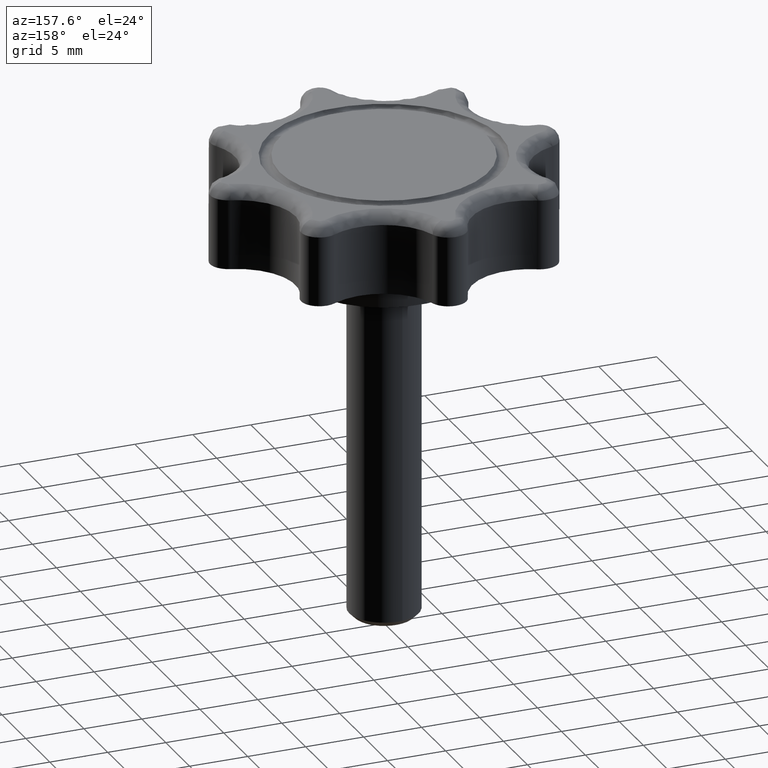
[diagram: clean part render]
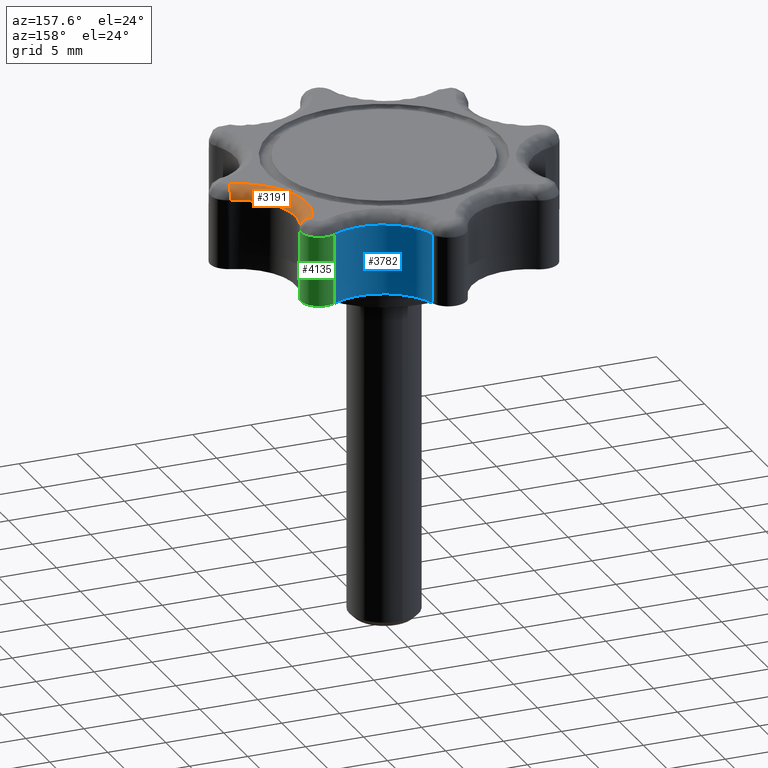
[diagram: same view with three faces highlighted in distinct colors, each labeled with its STEP entity id]
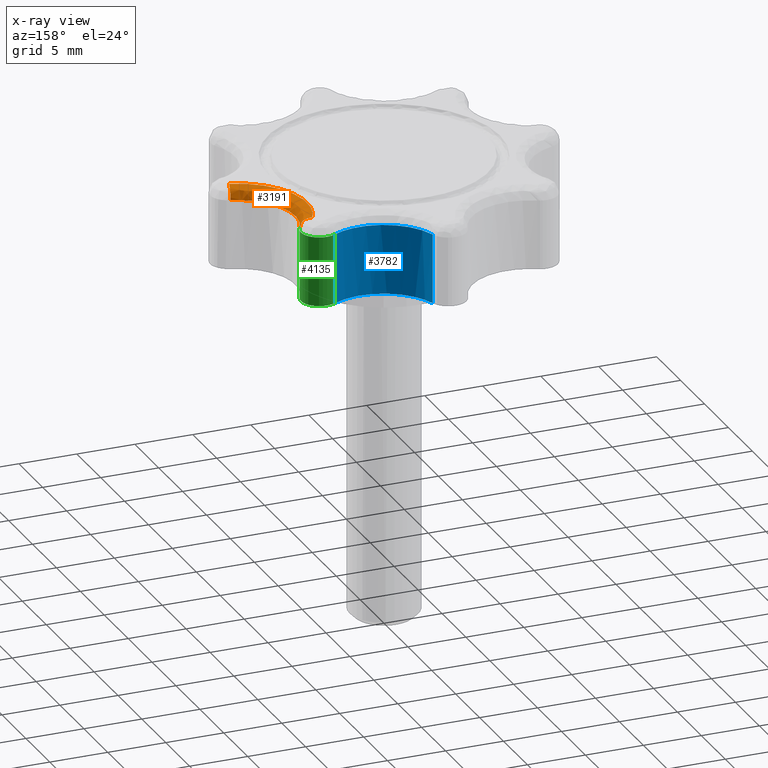
[diagram: x-ray of the same camera — body ghosted, the three highlighted faces saturated]
A machine part, auxiliary view with three faces highlighted in distinct colors.
The next image is the same camera in x-ray (body ghosted, the three faces saturated) — at least one of them is partly hidden behind the body in this view.
Their STEP definitions:

[orange] entity #3191 — the highlighted face is a freeform B-spline surface patch.
#1556=CARTESIAN_POINT('',(13.863727593875939,1.508570802534970,9.0));
#1557=VERTEX_POINT('',#1556);
#1571=CARTESIAN_POINT('',(13.587670934453600,0.547429438952620,10.0));
#1572=VERTEX_POINT('',#1571);
#1573=CARTESIAN_POINT('',(13.863727593875939,1.508570802534970,9.0));
#1574=CARTESIAN_POINT('',(13.863727702890406,1.508571182088586,9.414213678036347));
#1575=CARTESIAN_POINT('',(13.782872540794971,1.227059260181678,9.707106920804424));
#1576=CARTESIAN_POINT('',(13.702017378699548,0.945547338274769,10.000000163572500));
#1577=CARTESIAN_POINT('',(13.587670934453600,0.547429438952620,10.0));
#1585=(BOUNDED_CURVE()B_SPLINE_CURVE(2,(#1573,#1574,#1575,#1576,#1577),.UNSPECIFIED.,.F.,.U.)B_SPLINE_CURVE_WITH_KNOTS((3,2,3),(0.0,0.500000000000000,1.0),.UNSPECIFIED.)CURVE()GEOMETRIC_REPRESENTATION_ITEM()RATIONAL_B_SPLINE_CURVE((1.0,0.923879494730953,1.0,0.923879494730953,1.0))REPRESENTATION_ITEM(''));
#1586=EDGE_CURVE('',#1557,#1572,#1585,.T.);
#1630=CARTESIAN_POINT('',(10.869854302349561,8.736416143128899,9.0));
#1631=VERTEX_POINT('',#1630);
#1662=CARTESIAN_POINT('',(9.995022858650700,9.220843583635510,10.0));
#1663=VERTEX_POINT('',#1662);
#1677=CARTESIAN_POINT('',(10.869854302349561,8.736416143128899,9.0));
#1678=CARTESIAN_POINT('',(10.869854693384683,8.736415926597976,9.414214194504021));
#1679=CARTESIAN_POINT('',(10.613622381388790,8.878301502350082,9.707107544236074));
#1680=CARTESIAN_POINT('',(10.357390069392904,9.020187078102190,10.000000893968128));
#1681=CARTESIAN_POINT('',(9.995022858650700,9.220843583635510,10.0));
#1689=(BOUNDED_CURVE()B_SPLINE_CURVE(2,(#1677,#1678,#1679,#1680,#1681),.UNSPECIFIED.,.F.,.U.)B_SPLINE_CURVE_WITH_KNOTS((3,2,3),(0.0,0.500000000000000,1.0),.UNSPECIFIED.)CURVE()GEOMETRIC_REPRESENTATION_ITEM()RATIONAL_B_SPLINE_CURVE((1.0,0.923879326031642,1.0,0.923879326031642,1.0))REPRESENTATION_ITEM(''));
#1690=EDGE_CURVE('',#1631,#1663,#1689,.T.);
#3140=CARTESIAN_POINT('',(10.175560648574669,9.653114974198358,9.997592322406749));
#3141=CARTESIAN_POINT('',(5.250042761461495,2.176037459239871,9.997592322406749));
#3142=CARTESIAN_POINT('',(14.019571376580094,0.369720075836349,9.997592322406749));
#3143=CARTESIAN_POINT('',(11.133483546458962,9.022084152521691,10.077336155644735));
#3144=CARTESIAN_POINT('',(7.138874722443843,2.958153312428099,10.077336155644737));
#3145=CARTESIAN_POINT('',(14.250987030483241,1.493224847221649,10.077336155644732));
#3146=CARTESIAN_POINT('',(11.066531906708750,9.066188483191192,8.930275764432745));
#3147=CARTESIAN_POINT('',(7.006859507775017,2.903489269047112,8.930275764432743));
#3148=CARTESIAN_POINT('',(14.234812808604946,1.414700274025240,8.930275764432743));
#3156=(BOUNDED_SURFACE()B_SPLINE_SURFACE(2,2,((#3140,#3143,#3146),(#3141,#3144,#3147),(#3142,#3145,#3148)),.UNSPECIFIED.,.F.,.F.,.U.)B_SPLINE_SURFACE_WITH_KNOTS((3,3),(3,3),(0.0,12.872670224555320),(0.0,1.822370876746941),.UNSPECIFIED.)GEOMETRIC_REPRESENTATION_ITEM()RATIONAL_B_SPLINE_SURFACE(((0.840783889880465,0.550212805908201,0.836126522140143),(0.472521353374135,0.309220125195888,0.469903908232399),(0.843482970199464,0.551979096358769,0.838810651400068)))REPRESENTATION_ITEM('')SURFACE());
#3157=ORIENTED_EDGE('',*,*,#1690,.T.);
#3158=CARTESIAN_POINT('',(13.587670934453600,0.547429438952620,10.0));
#3159=CARTESIAN_POINT('',(10.807624894185267,1.345907838586208,10.000000000000002));
#3160=CARTESIAN_POINT('',(9.700734385926911,4.018176003164843,10.0));
#3161=CARTESIAN_POINT('',(8.593843877668554,6.690444167743477,10.000000000000002));
#3162=CARTESIAN_POINT('',(9.995022858650700,9.220843583635510,10.0));
#3170=(BOUNDED_CURVE()B_SPLINE_CURVE(2,(#3158,#3159,#3160,#3161,#3162),.UNSPECIFIED.,.F.,.U.)B_SPLINE_CURVE_WITH_KNOTS((3,2,3),(0.0,0.500000000000000,1.0),.UNSPECIFIED.)CURVE()GEOMETRIC_REPRESENTATION_ITEM()RATIONAL_B_SPLINE_CURVE((1.0,0.900793031560484,1.0,0.900793031560484,1.0))REPRESENTATION_ITEM(''));
#3171=EDGE_CURVE('',#1572,#1663,#3170,.T.);
#3172=ORIENTED_EDGE('',*,*,#3171,.F.);
#3173=ORIENTED_EDGE('',*,*,#1586,.F.);
#3174=CARTESIAN_POINT('',(10.869854302349570,8.736416143128894,9.0));
#3175=CARTESIAN_POINT('',(9.702205049213079,6.627749956766908,9.0));
#3176=CARTESIAN_POINT('',(10.624613787318200,4.400859752081475,9.0));
#3177=CARTESIAN_POINT('',(11.547022525423317,2.173969547396044,9.0));
#3178=CARTESIAN_POINT('',(13.863727593875939,1.508570802534970,9.0));
#3186=(BOUNDED_CURVE()B_SPLINE_CURVE(2,(#3174,#3175,#3176,#3177,#3178),.UNSPECIFIED.,.F.,.U.)B_SPLINE_CURVE_WITH_KNOTS((3,2,3),(0.0,0.500000000000000,1.0),.UNSPECIFIED.)CURVE()GEOMETRIC_REPRESENTATION_ITEM()RATIONAL_B_SPLINE_CURVE((1.0,0.900793027669703,1.0,0.900793027669703,1.0))REPRESENTATION_ITEM(''));
#3187=EDGE_CURVE('',#1631,#1557,#3186,.T.);
#3188=ORIENTED_EDGE('',*,*,#3187,.F.);
#3189=EDGE_LOOP('',(#3157,#3172,#3173,#3188));
#3190=FACE_OUTER_BOUND('',#3189,.T.);
#3191=ADVANCED_FACE('',(#3190),#3156,.T.);

[blue] entity #3782 — the highlighted face is a freeform B-spline surface patch.
#1733=CARTESIAN_POINT('',(8.736414706498250,10.869855973853820,9.0));
#1734=VERTEX_POINT('',#1733);
#3361=CARTESIAN_POINT('',(1.508571614327085,13.863726197974440,9.0));
#3362=VERTEX_POINT('',#3361);
#3394=CARTESIAN_POINT('',(1.508571614327085,13.863726197974440,9.0));
#3395=CARTESIAN_POINT('',(2.173970333283099,11.547022187261131,9.0));
#3396=CARTESIAN_POINT('',(4.400859746088191,10.624614517312130,9.0));
#3397=CARTESIAN_POINT('',(6.627749158893283,9.702206847363126,9.0));
#3398=CARTESIAN_POINT('',(8.736414706498250,10.869855973853820,9.0));
#3406=(BOUNDED_CURVE()B_SPLINE_CURVE(2,(#3394,#3395,#3396,#3397,#3398),.UNSPECIFIED.,.F.,.U.)B_SPLINE_CURVE_WITH_KNOTS((3,2,3),(0.0,0.500000000000000,1.0),.UNSPECIFIED.)CURVE()GEOMETRIC_REPRESENTATION_ITEM()RATIONAL_B_SPLINE_CURVE((1.0,0.900793071373488,1.0,0.900793071373488,1.0))REPRESENTATION_ITEM(''));
#3407=EDGE_CURVE('',#3362,#1734,#3406,.T.);
#3736=CARTESIAN_POINT('',(1.472993444676055,13.994225476647371,9.150000000000002));
#3737=CARTESIAN_POINT('',(1.472993444676055,13.994225476647371,2.846250000000000));
#3738=CARTESIAN_POINT('',(3.223496682799949,7.213314566397838,9.150000000000002));
#3739=CARTESIAN_POINT('',(3.223496682799949,7.213314566397838,2.846249999999999));
#3740=CARTESIAN_POINT('',(9.068466385555492,11.070949014254852,9.150000000000002));
#3741=CARTESIAN_POINT('',(9.068466385555492,11.070949014254852,2.846250000000000));
#3749=(BOUNDED_SURFACE()B_SPLINE_SURFACE(1,2,((#3736,#3738,#3740),(#3737,#3739,#3741)),.UNSPECIFIED.,.F.,.F.,.U.)B_SPLINE_SURFACE_WITH_KNOTS((2,2),(3,3),(0.0,6.303750000000003),(0.0,10.295104282296920),.UNSPECIFIED.)GEOMETRIC_REPRESENTATION_ITEM()RATIONAL_B_SPLINE_SURFACE(((1.0,0.580929759509419,0.999546637765912),(1.0,0.580929759509419,0.999546637765912)))REPRESENTATION_ITEM('')SURFACE());
#3750=CARTESIAN_POINT('',(1.508571614327085,13.863726197974440,3.0));
#3751=VERTEX_POINT('',#3750);
#3752=CARTESIAN_POINT('',(1.508571614327085,13.863726197974440,9.0));
#3753=CARTESIAN_POINT('',(1.508571614327085,13.863726197974440,3.0));
#3754=QUASI_UNIFORM_CURVE('',1,(#3752,#3753),.UNSPECIFIED.,.F.,.U.);
#3755=EDGE_CURVE('',#3362,#3751,#3754,.T.);
#3756=ORIENTED_EDGE('',*,*,#3755,.F.);
#3757=ORIENTED_EDGE('',*,*,#3407,.T.);
#3758=CARTESIAN_POINT('',(8.736414706498250,10.869855973853820,3.0));
#3759=VERTEX_POINT('',#3758);
#3760=CARTESIAN_POINT('',(8.736414706498250,10.869855973853820,9.0));
#3761=CARTESIAN_POINT('',(8.736414706498250,10.869855973853820,3.0));
#3762=QUASI_UNIFORM_CURVE('',1,(#3760,#3761),.UNSPECIFIED.,.F.,.U.);
#3763=EDGE_CURVE('',#1734,#3759,#3762,.T.);
#3764=ORIENTED_EDGE('',*,*,#3763,.T.);
#3765=CARTESIAN_POINT('',(8.736414706498250,10.869855973853820,3.0));
#3766=CARTESIAN_POINT('',(6.627749158893280,9.702206847363126,3.000000000000000));
#3767=CARTESIAN_POINT('',(4.400859746088190,10.624614517312130,3.0));
#3768=CARTESIAN_POINT('',(2.173970333283100,11.547022187261133,3.000000000000000));
#3769=CARTESIAN_POINT('',(1.508571614327085,13.863726197974440,3.0));
#3777=(BOUNDED_CURVE()B_SPLINE_CURVE(2,(#3765,#3766,#3767,#3768,#3769),.UNSPECIFIED.,.F.,.U.)B_SPLINE_CURVE_WITH_KNOTS((3,2,3),(0.0,0.500000000000000,1.0),.UNSPECIFIED.)CURVE()GEOMETRIC_REPRESENTATION_ITEM()RATIONAL_B_SPLINE_CURVE((1.0,0.900793071373488,1.0,0.900793071373488,1.0))REPRESENTATION_ITEM(''));
#3778=EDGE_CURVE('',#3759,#3751,#3777,.T.);
#3779=ORIENTED_EDGE('',*,*,#3778,.T.);
#3780=EDGE_LOOP('',(#3756,#3757,#3764,#3779));
#3781=FACE_OUTER_BOUND('',#3780,.T.);
#3782=ADVANCED_FACE('',(#3781),#3749,.F.);

[green] entity #4135 — the highlighted face is a freeform B-spline surface patch.
#1628=CARTESIAN_POINT('',(11.066315999997011,9.496751834049245,9.000000001450189));
#1629=VERTEX_POINT('',#1628);
#1630=CARTESIAN_POINT('',(10.869854302349561,8.736416143128899,9.0));
#1631=VERTEX_POINT('',#1630);
#1632=CARTESIAN_POINT('',(11.066315999997011,9.496751834049245,9.000000001450191));
#1633=CARTESIAN_POINT('',(11.066314496308383,9.091202973159634,9.000000000725095));
#1634=CARTESIAN_POINT('',(10.869854302349561,8.736416143128899,9.0));
#1642=(BOUNDED_CURVE()B_SPLINE_CURVE(2,(#1632,#1633,#1634),.UNSPECIFIED.,.F.,.U.)B_SPLINE_CURVE_WITH_KNOTS((3,3),(0.802348855277420,1.0),.UNSPECIFIED.)CURVE()GEOMETRIC_REPRESENTATION_ITEM()RATIONAL_B_SPLINE_CURVE((0.903795136754815,0.920452102293465,1.0))REPRESENTATION_ITEM(''));
#1643=EDGE_CURVE('',#1629,#1631,#1642,.T.);
#1733=CARTESIAN_POINT('',(8.736414706498250,10.869855973853820,9.0));
#1734=VERTEX_POINT('',#1733);
#1735=CARTESIAN_POINT('',(8.736414706498250,10.869855973853820,9.0));
#1736=CARTESIAN_POINT('',(9.770651194639241,11.442552434627073,9.0));
#1737=CARTESIAN_POINT('',(10.606601775623540,10.606602091761880,9.0));
#1738=CARTESIAN_POINT('',(11.066316897166613,10.146887101167874,9.0));
#1739=CARTESIAN_POINT('',(11.066315999997011,9.496751834049245,9.000000001450191));
#1747=(BOUNDED_CURVE()B_SPLINE_CURVE(2,(#1735,#1736,#1737,#1738,#1739),.UNSPECIFIED.,.F.,.U.)B_SPLINE_CURVE_WITH_KNOTS((3,2,3),(0.0,0.500000000000000,0.802348855277419),.UNSPECIFIED.)CURVE()GEOMETRIC_REPRESENTATION_ITEM()RATIONAL_B_SPLINE_CURVE((1.0,0.798766918809939,1.0,0.878314816516474,0.903795136754815))REPRESENTATION_ITEM(''));
#1748=EDGE_CURVE('',#1734,#1629,#1747,.T.);
#3758=CARTESIAN_POINT('',(8.736414706498250,10.869855973853820,3.0));
#3759=VERTEX_POINT('',#3758);
#3760=CARTESIAN_POINT('',(8.736414706498250,10.869855973853820,9.0));
#3761=CARTESIAN_POINT('',(8.736414706498250,10.869855973853820,3.0));
#3762=QUASI_UNIFORM_CURVE('',1,(#3760,#3761),.UNSPECIFIED.,.F.,.U.);
#3763=EDGE_CURVE('',#1734,#3759,#3762,.T.);
#3797=CARTESIAN_POINT('',(10.869854302349561,8.736416143128899,3.0));
#3798=VERTEX_POINT('',#3797);
#3799=CARTESIAN_POINT('',(10.869854302349561,8.736416143128899,9.0));
#3800=CARTESIAN_POINT('',(10.869854302349561,8.736416143128899,3.0));
#3801=QUASI_UNIFORM_CURVE('',1,(#3799,#3800),.UNSPECIFIED.,.F.,.U.);
#3802=EDGE_CURVE('',#1631,#3798,#3801,.T.);
#4096=CARTESIAN_POINT('',(10.848786435098500,8.699550659386306,9.150000001486443));
#4097=CARTESIAN_POINT('',(10.848786435098500,8.699550659386306,2.846249999962839));
#4098=CARTESIAN_POINT('',(11.482910605110206,9.775005818763514,9.150000001486443));
#4099=CARTESIAN_POINT('',(11.482910605110206,9.775005818763514,2.846249999962840));
#4100=CARTESIAN_POINT('',(10.577666192423280,10.634802199381159,9.150000001486443));
#4101=CARTESIAN_POINT('',(10.577666192423280,10.634802199381159,2.846249999962839));
#4102=CARTESIAN_POINT('',(9.672421779736354,11.494598579998803,9.150000001486443));
#4103=CARTESIAN_POINT('',(9.672421779736354,11.494598579998803,2.846249999962840));
#4104=CARTESIAN_POINT('',(8.631026239579013,10.805967625303550,9.150000001486443));
#4105=CARTESIAN_POINT('',(8.631026239579013,10.805967625303550,2.846249999962839));
#4113=(BOUNDED_SURFACE()B_SPLINE_SURFACE(1,2,((#4096,#4098,#4100,#4102,#4104),(#4097,#4099,#4101,#4103,#4105)),.UNSPECIFIED.,.F.,.F.,.U.)B_SPLINE_SURFACE_WITH_KNOTS((2,2),(3,2,3),(0.0,6.303750001523604),(0.0,2.192462352097516,4.384924704195033),.UNSPECIFIED.)GEOMETRIC_REPRESENTATION_ITEM()RATIONAL_B_SPLINE_SURFACE(((1.0,0.782608156852414,1.0,0.782608156852414,1.0),(1.0,0.782608156852414,1.0,0.782608156852414,1.0)))REPRESENTATION_ITEM('')SURFACE());
#4114=ORIENTED_EDGE('',*,*,#3763,.F.);
#4115=ORIENTED_EDGE('',*,*,#1748,.T.);
#4116=ORIENTED_EDGE('',*,*,#1643,.T.);
#4117=ORIENTED_EDGE('',*,*,#3802,.T.);
#4118=CARTESIAN_POINT('',(8.736414706498250,10.869855973853820,3.0));
#4119=CARTESIAN_POINT('',(9.770650990408743,11.442552547717266,3.000000000000000));
#4120=CARTESIAN_POINT('',(10.606600831580741,10.606602614514280,3.0));
#4121=CARTESIAN_POINT('',(11.442550672752736,9.770652681311292,3.000000000000000));
#4122=CARTESIAN_POINT('',(10.869854302349561,8.736416143128899,3.0));
#4130=(BOUNDED_CURVE()B_SPLINE_CURVE(2,(#4118,#4119,#4120,#4121,#4122),.UNSPECIFIED.,.F.,.U.)B_SPLINE_CURVE_WITH_KNOTS((3,2,3),(0.0,0.500000000000000,1.0),.UNSPECIFIED.)CURVE()GEOMETRIC_REPRESENTATION_ITEM()RATIONAL_B_SPLINE_CURVE((1.0,0.798766918809939,1.0,0.798766918809939,1.0))REPRESENTATION_ITEM(''));
#4131=EDGE_CURVE('',#3759,#3798,#4130,.T.);
#4132=ORIENTED_EDGE('',*,*,#4131,.F.);
#4133=EDGE_LOOP('',(#4114,#4115,#4116,#4117,#4132));
#4134=FACE_OUTER_BOUND('',#4133,.T.);
#4135=ADVANCED_FACE('',(#4134),#4113,.T.);